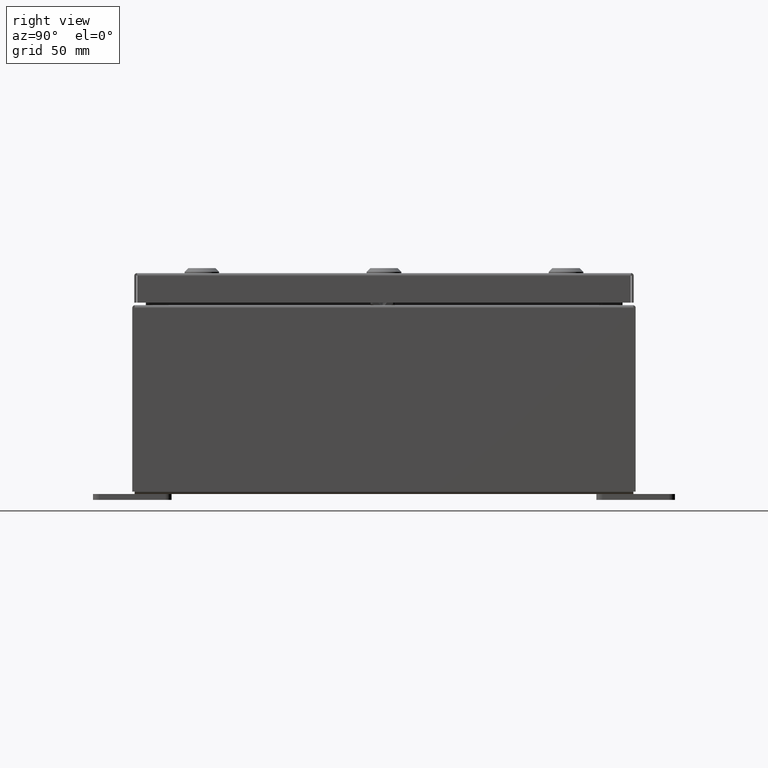
[diagram: clean part render]
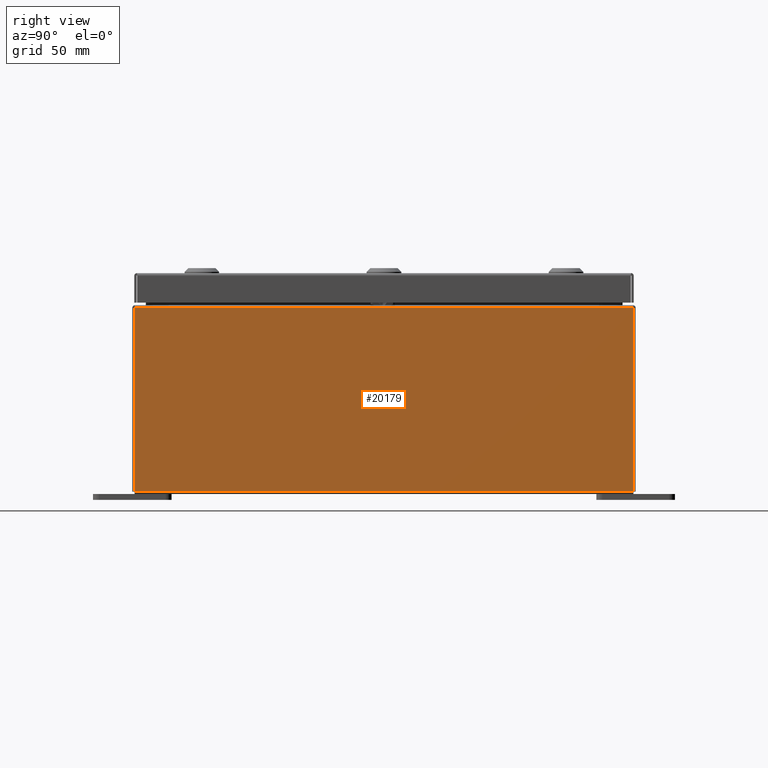
[diagram: same view with one face highlighted and labeled with its STEP entity id]
A machine part, right view. The second image highlights one B-rep face of the part: STEP entity #20179.
In plain terms, the highlighted planar face has unit normal (-1, 0, 0).
Its self-contained STEP definition (entity closure, byte-faithful):
#2998 = DIRECTION ( 'NONE',  ( -3.503965158194251300E-015, -1.844192188523290500E-016, -1.000000000000000000 ) ) ;
#3049 = CARTESIAN_POINT ( 'NONE',  ( 5.999999999999999100, -7.925300000000000900, -1.982302697000672100E-014 ) ) ;
#7385 = VERTEX_POINT ( 'NONE', #50223 ) ;
#7808 = CARTESIAN_POINT ( 'NONE',  ( 6.000000000000020400, 7.925300000000000000, 5.837600000000001000 ) ) ;
#9754 = DIRECTION ( 'NONE',  ( 3.503965158194251300E-015, 0.0000000000000000000, 1.000000000000000000 ) ) ;
#11146 = CARTESIAN_POINT ( 'NONE',  ( 5.999999999999999100, 7.925299999999998200, -2.128460460517708500E-014 ) ) ;
#13134 = VECTOR ( 'NONE', #34448, 39.37007874015748100 ) ;
#13828 = VECTOR ( 'NONE', #2998, 39.37007874015748100 ) ;
#15018 = VECTOR ( 'NONE', #9754, 39.37007874015748100 ) ;
#16585 = VERTEX_POINT ( 'NONE', #47705 ) ;
#17823 = DIRECTION ( 'NONE',  ( 3.503965158194250900E-015, 0.0000000000000000000, 1.000000000000000000 ) ) ;
#17949 = DIRECTION ( 'NONE',  ( -1.000000000000000000, 0.0000000000000000000, 3.503965158194250900E-015 ) ) ;
#17989 = CARTESIAN_POINT ( 'NONE',  ( 6.000000000000020400, 7.925300000000000000, 5.837600000000001000 ) ) ;
#18136 = CARTESIAN_POINT ( 'NONE',  ( 5.999999999999999100, 0.0000000000000000000, -2.128460460517708500E-014 ) ) ;
#18548 = PLANE ( 'NONE',  #18698 ) ;
#18698 = AXIS2_PLACEMENT_3D ( 'NONE', #18136, #17949, #17823 ) ;
#20179 = ADVANCED_FACE ( 'NONE', ( #54757 ), #18548, .F. ) ;
#21434 = EDGE_CURVE ( 'NONE', #42119, #7385, #51937, .T. ) ;
#26682 = EDGE_CURVE ( 'NONE', #42119, #50592, #50913, .T. ) ;
#27348 = DIRECTION ( 'NONE',  ( -0.0000000000000000000, -1.000000000000000000, -0.0000000000000000000 ) ) ;
#34053 = CARTESIAN_POINT ( 'NONE',  ( 5.999999999999999100, -7.925300000000000000, 0.01299999999999984700 ) ) ;
#34313 = LINE ( 'NONE', #17989, #46877 ) ;
#34448 = DIRECTION ( 'NONE',  ( -0.0000000000000000000, -1.000000000000000000, -0.0000000000000000000 ) ) ;
#34958 = ORIENTED_EDGE ( 'NONE', *, *, #21434, .F. ) ;
#36476 = EDGE_CURVE ( 'NONE', #16585, #7385, #60714, .T. ) ;
#42119 = VERTEX_POINT ( 'NONE', #54885 ) ;
#46622 = ORIENTED_EDGE ( 'NONE', *, *, #36476, .T. ) ;
#46877 = VECTOR ( 'NONE', #27348, 39.37007874015748100 ) ;
#47642 = ORIENTED_EDGE ( 'NONE', *, *, #26682, .T. ) ;
#47705 = CARTESIAN_POINT ( 'NONE',  ( 6.000000000000020400, -7.925300000000000000, 5.837600000000001000 ) ) ;
#50223 = CARTESIAN_POINT ( 'NONE',  ( 5.999999999999999100, -7.925300000000000000, 0.01299999999999984500 ) ) ;
#50592 = VERTEX_POINT ( 'NONE', #7808 ) ;
#50913 = LINE ( 'NONE', #11146, #15018 ) ;
#51937 = LINE ( 'NONE', #34053, #13134 ) ;
#54757 = FACE_OUTER_BOUND ( 'NONE', #57820, .T. ) ;
#54885 = CARTESIAN_POINT ( 'NONE',  ( 5.999999999999999100, 7.925300000000000000, 0.01299999999999984700 ) ) ;
#57820 = EDGE_LOOP ( 'NONE', ( #59277, #46622, #34958, #47642 ) ) ;
#59277 = ORIENTED_EDGE ( 'NONE', *, *, #59610, .T. ) ;
#59610 = EDGE_CURVE ( 'NONE', #50592, #16585, #34313, .T. ) ;
#60714 = LINE ( 'NONE', #3049, #13828 ) ;